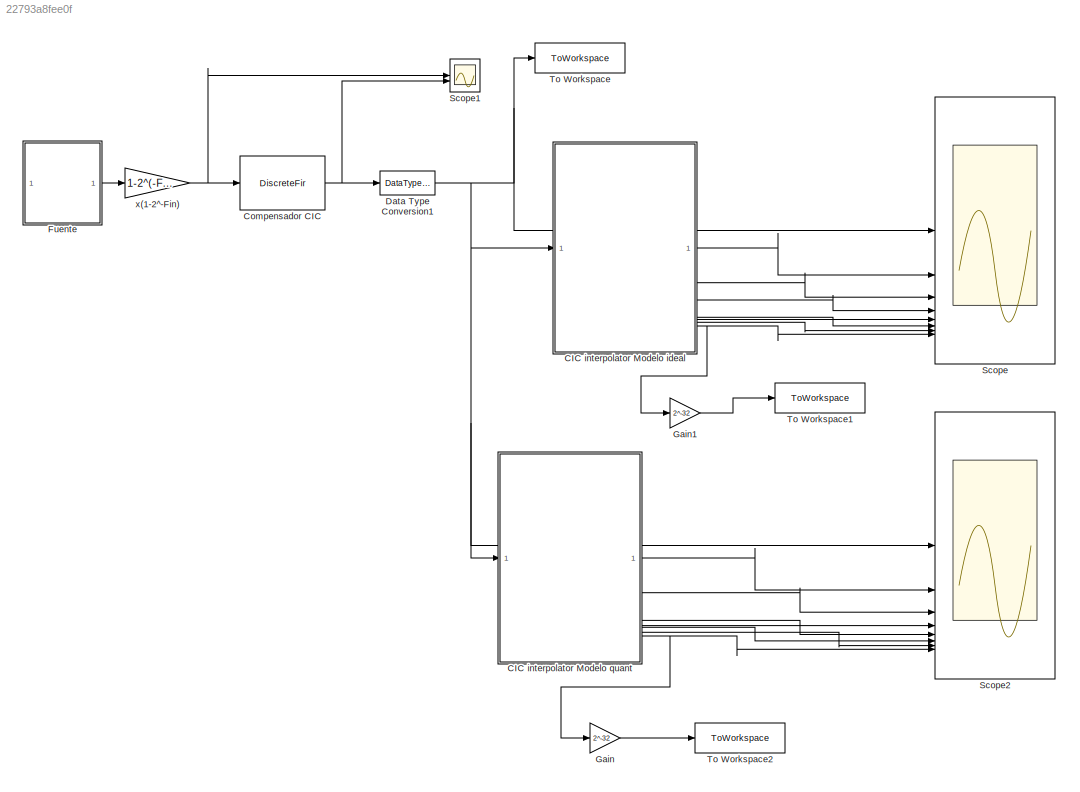
MODEL slx_22793a8fee0f
KIND model
CONFIG AbsTol = auto
CONFIG EnableMultiTasking = on
CONFIG FixedStep = auto
CONFIG MaxStep = auto
CONFIG MinStep = auto
CONFIG RelTol = 1e-3
CONFIG SampleTimeConstraint = Unconstrained
CONFIG SolverName = ode45
CONFIG StartTime = 0.0
CONFIG StopTime = Tsim
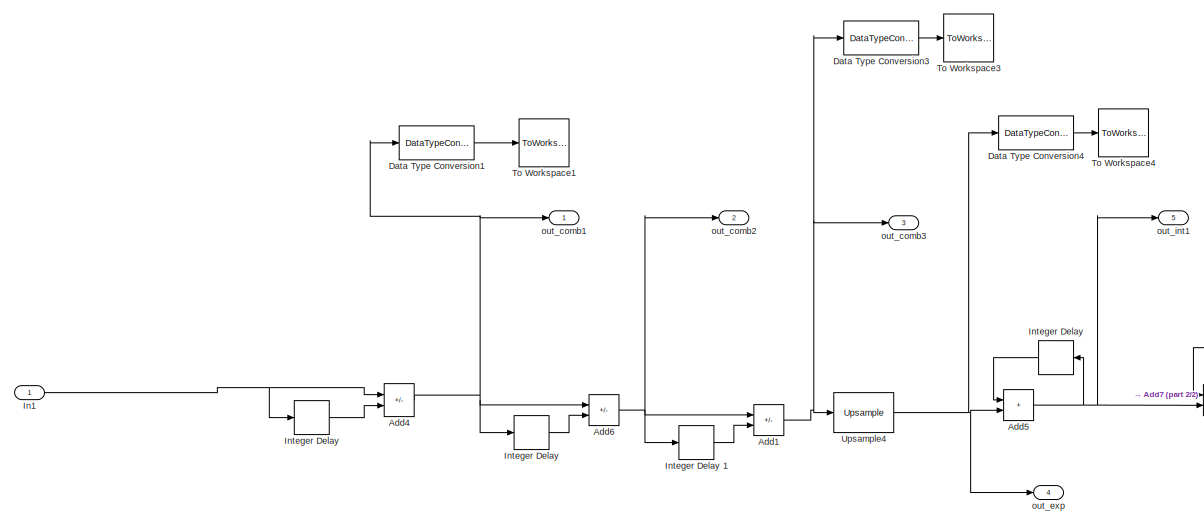
[diagram: CIC interpolator Modelo ideal  - part 1/2, center side, full height]
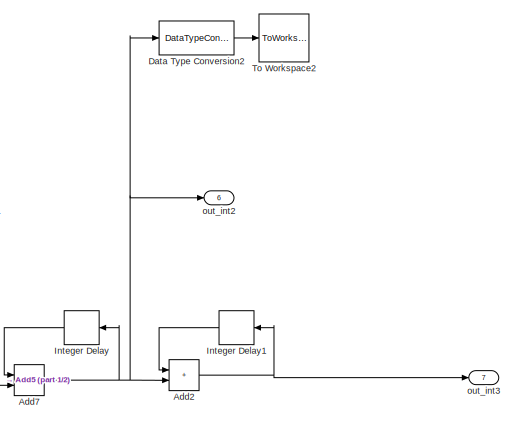
[diagram: CIC interpolator Modelo ideal  - part 2/2, right side, full height]
BLOCK [SubSystem] CIC interpolator Modelo ideal 
BLOCK [Delay] CIC interpolator Modelo ideal / Integer Delay
  DelayLength = 1
  InputPortMap = u0
  UserDataPersistent = on
BLOCK [Delay] CIC interpolator Modelo ideal / Integer Delay1
  DelayLength = 1
  InputPortMap = u0
  UserDataPersistent = on
BLOCK [Sum] CIC interpolator Modelo ideal /Add1
  IconShape = rectangular
  Inputs = +-
BLOCK [Sum] CIC interpolator Modelo ideal /Add2
  IconShape = rectangular
BLOCK [Sum] CIC interpolator Modelo ideal /Add4
  IconShape = rectangular
  Inputs = +-
BLOCK [Sum] CIC interpolator Modelo ideal /Add5
  IconShape = rectangular
BLOCK [Sum] CIC interpolator Modelo ideal /Add6
  IconShape = rectangular
  Inputs = +-
BLOCK [Sum] CIC interpolator Modelo ideal /Add7
  IconShape = rectangular
BLOCK [DataTypeConversion] CIC interpolator Modelo ideal /Data Type Conversion1
  RndMeth = Floor
  SaturateOnIntegerOverflow = off
BLOCK [DataTypeConversion] CIC interpolator Modelo ideal /Data Type Conversion2
  RndMeth = Floor
  SaturateOnIntegerOverflow = off
BLOCK [DataTypeConversion] CIC interpolator Modelo ideal /Data Type Conversion3
  RndMeth = Floor
  SaturateOnIntegerOverflow = off
BLOCK [DataTypeConversion] CIC interpolator Modelo ideal /Data Type Conversion4
  RndMeth = Floor
  SaturateOnIntegerOverflow = off
BLOCK [Inport] CIC interpolator Modelo ideal /In1
BLOCK [Delay] CIC interpolator Modelo ideal /Integer Delay 
  DelayLength = M
  InputPortMap = u0
  UserDataPersistent = on
BLOCK [Delay] CIC interpolator Modelo ideal /Integer Delay  
  DelayLength = M
  InputPortMap = u0
  UserDataPersistent = on
BLOCK [Delay] CIC interpolator Modelo ideal /Integer Delay  1
  DelayLength = M
  InputPortMap = u0
  UserDataPersistent = on
BLOCK [ToWorkspace] CIC interpolator Modelo ideal /To Workspace1
  MaxDataPoints = inf
  SampleTime = -1
  Save2DSignal = 2-D array (concatenate along first dimension)
  VariableName = sout_comb
BLOCK [ToWorkspace] CIC interpolator Modelo ideal /To Workspace2
  MaxDataPoints = inf
  SampleTime = -1
  Save2DSignal = 2-D array (concatenate along first dimension)
  VariableName = sin_int
BLOCK [ToWorkspace] CIC interpolator Modelo ideal /To Workspace3
  MaxDataPoints = inf
  SampleTime = -1
  Save2DSignal = 2-D array (concatenate along first dimension)
  VariableName = sin_exp
BLOCK [ToWorkspace] CIC interpolator Modelo ideal /To Workspace4
  MaxDataPoints = inf
  SampleTime = -1
  Save2DSignal = 2-D array (concatenate along first dimension)
  VariableName = sout_exp
BLOCK [Reference] CIC interpolator Modelo ideal /Upsample4  REF=dspsigops/Upsample
  SourceBlock = dspsigops/Upsample
  SourceType = Upsample
  UserDataPersistent = on
BLOCK [Outport] CIC interpolator Modelo ideal /out_comb1
  VectorParamsAs1DForOutWhenUnconnected = off
BLOCK [Outport] CIC interpolator Modelo ideal /out_comb2
  Port = 2
  VectorParamsAs1DForOutWhenUnconnected = off
BLOCK [Outport] CIC interpolator Modelo ideal /out_comb3
  Port = 3
  VectorParamsAs1DForOutWhenUnconnected = off
BLOCK [Outport] CIC interpolator Modelo ideal /out_exp
  Port = 4
  VectorParamsAs1DForOutWhenUnconnected = off
BLOCK [Outport] CIC interpolator Modelo ideal /out_int1
  Port = 5
  VectorParamsAs1DForOutWhenUnconnected = off
BLOCK [Outport] CIC interpolator Modelo ideal /out_int2
  Port = 6
  VectorParamsAs1DForOutWhenUnconnected = off
BLOCK [Outport] CIC interpolator Modelo ideal /out_int3
  Port = 7
  VectorParamsAs1DForOutWhenUnconnected = off
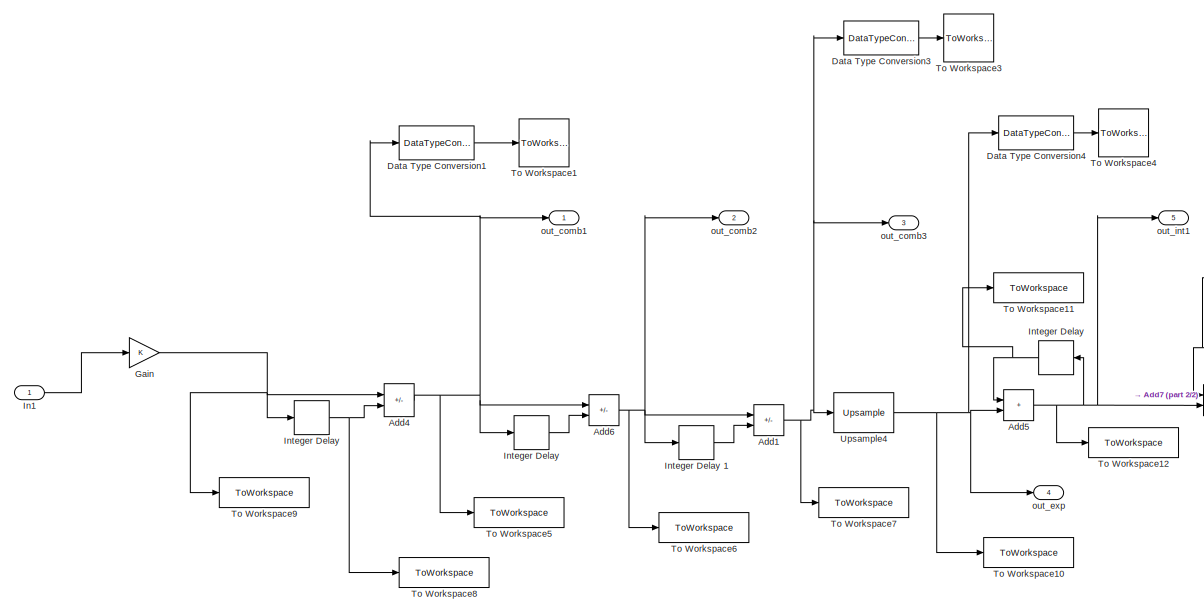
[diagram: CIC interpolator Modelo quant - part 1/2, center side, full height]
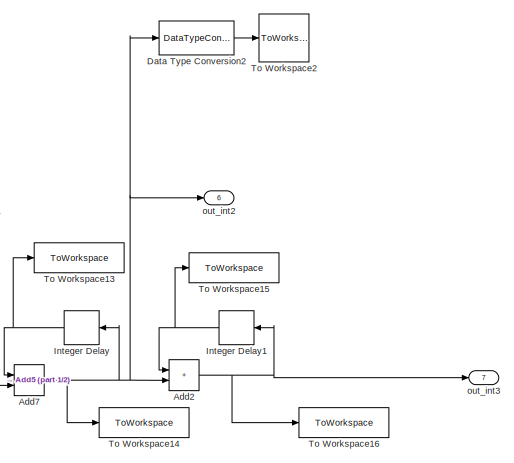
[diagram: CIC interpolator Modelo quant - part 2/2, middle right region]
BLOCK [SubSystem] CIC interpolator Modelo quant
BLOCK [Delay] CIC interpolator Modelo quant/ Integer Delay
  DelayLength = 1
  InputPortMap = u0
  UserDataPersistent = on
BLOCK [Delay] CIC interpolator Modelo quant/ Integer Delay1
  DelayLength = 1
  InputPortMap = u0
  UserDataPersistent = on
BLOCK [Sum] CIC interpolator Modelo quant/Add1
  IconShape = rectangular
  Inputs = +-
  OutDataTypeStr = fixdt(1,Wcomb,Fcomb)
BLOCK [Sum] CIC interpolator Modelo quant/Add2
  IconShape = rectangular
  OutDataTypeStr = fixdt(1,Wint,Fint)
BLOCK [Sum] CIC interpolator Modelo quant/Add4
  IconShape = rectangular
  Inputs = +-
  OutDataTypeStr = fixdt(1,Wcomb,Fcomb)
BLOCK [Sum] CIC interpolator Modelo quant/Add5
  IconShape = rectangular
  OutDataTypeStr = fixdt(1,Wint,Fint)
BLOCK [Sum] CIC interpolator Modelo quant/Add6
  IconShape = rectangular
  Inputs = +-
  OutDataTypeStr = fixdt(1,Wcomb,Fcomb)
BLOCK [Sum] CIC interpolator Modelo quant/Add7
  IconShape = rectangular
  OutDataTypeStr = fixdt(1,Wint,Fint)
BLOCK [DataTypeConversion] CIC interpolator Modelo quant/Data Type Conversion1
  RndMeth = Floor
  SaturateOnIntegerOverflow = off
BLOCK [DataTypeConversion] CIC interpolator Modelo quant/Data Type Conversion2
  RndMeth = Floor
  SaturateOnIntegerOverflow = off
BLOCK [DataTypeConversion] CIC interpolator Modelo quant/Data Type Conversion3
  RndMeth = Floor
  SaturateOnIntegerOverflow = off
BLOCK [DataTypeConversion] CIC interpolator Modelo quant/Data Type Conversion4
  RndMeth = Floor
  SaturateOnIntegerOverflow = off
BLOCK [Gain] CIC interpolator Modelo quant/Gain
  OutDataTypeStr = fixdt(1,21,15)
BLOCK [Inport] CIC interpolator Modelo quant/In1
BLOCK [Delay] CIC interpolator Modelo quant/Integer Delay 
  DelayLength = M
  InputPortMap = u0
  UserDataPersistent = on
BLOCK [Delay] CIC interpolator Modelo quant/Integer Delay  
  DelayLength = M
  InputPortMap = u0
  UserDataPersistent = on
BLOCK [Delay] CIC interpolator Modelo quant/Integer Delay  1
  DelayLength = M
  InputPortMap = u0
  UserDataPersistent = on
BLOCK [ToWorkspace] CIC interpolator Modelo quant/To Workspace1
  MaxDataPoints = inf
  SampleTime = -1
  Save2DSignal = 2-D array (concatenate along first dimension)
  VariableName = sout_comb_q
BLOCK [ToWorkspace] CIC interpolator Modelo quant/To Workspace10
  FixptAsFi = on
  MaxDataPoints = inf
  SampleTime = -1
  Save2DSignal = 2-D array (concatenate along first dimension)
  VariableName = int0_input
BLOCK [ToWorkspace] CIC interpolator Modelo quant/To Workspace11
  FixptAsFi = on
  MaxDataPoints = inf
  SampleTime = -1
  Save2DSignal = 2-D array (concatenate along first dimension)
  VariableName = int0_delay
BLOCK [ToWorkspace] CIC interpolator Modelo quant/To Workspace12
  FixptAsFi = on
  MaxDataPoints = inf
  SampleTime = -1
  Save2DSignal = 2-D array (concatenate along first dimension)
  VariableName = int0_out
BLOCK [ToWorkspace] CIC interpolator Modelo quant/To Workspace13
  FixptAsFi = on
  MaxDataPoints = inf
  SampleTime = -1
  Save2DSignal = 2-D array (concatenate along first dimension)
  VariableName = int1_delay
BLOCK [ToWorkspace] CIC interpolator Modelo quant/To Workspace14
  FixptAsFi = on
  MaxDataPoints = inf
  SampleTime = -1
  Save2DSignal = 2-D array (concatenate along first dimension)
  VariableName = int1_out
BLOCK [ToWorkspace] CIC interpolator Modelo quant/To Workspace15
  FixptAsFi = on
  MaxDataPoints = inf
  SampleTime = -1
  Save2DSignal = 2-D array (concatenate along first dimension)
  VariableName = int2_delay
BLOCK [ToWorkspace] CIC interpolator Modelo quant/To Workspace16
  FixptAsFi = on
  MaxDataPoints = inf
  SampleTime = -1
  Save2DSignal = 2-D array (concatenate along first dimension)
  VariableName = int2_out
BLOCK [ToWorkspace] CIC interpolator Modelo quant/To Workspace2
  MaxDataPoints = inf
  SampleTime = -1
  Save2DSignal = 2-D array (concatenate along first dimension)
  VariableName = sin_int_q
BLOCK [ToWorkspace] CIC interpolator Modelo quant/To Workspace3
  MaxDataPoints = inf
  SampleTime = -1
  Save2DSignal = 2-D array (concatenate along first dimension)
  VariableName = sin_exp_q
BLOCK [ToWorkspace] CIC interpolator Modelo quant/To Workspace4
  MaxDataPoints = inf
  SampleTime = -1
  Save2DSignal = 2-D array (concatenate along first dimension)
  VariableName = sout_exp_q
BLOCK [ToWorkspace] CIC interpolator Modelo quant/To Workspace5
  FixptAsFi = on
  MaxDataPoints = inf
  SampleTime = -1
  Save2DSignal = 2-D array (concatenate along first dimension)
  VariableName = comb0_out
BLOCK [ToWorkspace] CIC interpolator Modelo quant/To Workspace6
  FixptAsFi = on
  MaxDataPoints = inf
  SampleTime = -1
  Save2DSignal = 2-D array (concatenate along first dimension)
  VariableName = comb1_out
BLOCK [ToWorkspace] CIC interpolator Modelo quant/To Workspace7
  FixptAsFi = on
  MaxDataPoints = inf
  SampleTime = -1
  Save2DSignal = 2-D array (concatenate along first dimension)
  VariableName = comb2_out
BLOCK [ToWorkspace] CIC interpolator Modelo quant/To Workspace8
  FixptAsFi = on
  MaxDataPoints = inf
  SampleTime = -1
  Save2DSignal = 2-D array (concatenate along first dimension)
  VariableName = comb0_delay
BLOCK [ToWorkspace] CIC interpolator Modelo quant/To Workspace9
  FixptAsFi = on
  MaxDataPoints = inf
  SampleTime = -1
  Save2DSignal = 2-D array (concatenate along first dimension)
  VariableName = comb0_input
BLOCK [Reference] CIC interpolator Modelo quant/Upsample4  REF=dspsigops/Upsample
  SourceBlock = dspsigops/Upsample
  SourceType = Upsample
  UserDataPersistent = on
BLOCK [Outport] CIC interpolator Modelo quant/out_comb1
  VectorParamsAs1DForOutWhenUnconnected = off
BLOCK [Outport] CIC interpolator Modelo quant/out_comb2
  Port = 2
  VectorParamsAs1DForOutWhenUnconnected = off
BLOCK [Outport] CIC interpolator Modelo quant/out_comb3
  Port = 3
  VectorParamsAs1DForOutWhenUnconnected = off
BLOCK [Outport] CIC interpolator Modelo quant/out_exp
  Port = 4
  VectorParamsAs1DForOutWhenUnconnected = off
BLOCK [Outport] CIC interpolator Modelo quant/out_int1
  Port = 5
  VectorParamsAs1DForOutWhenUnconnected = off
BLOCK [Outport] CIC interpolator Modelo quant/out_int2
  Port = 6
  VectorParamsAs1DForOutWhenUnconnected = off
BLOCK [Outport] CIC interpolator Modelo quant/out_int3
  Port = 7
  VectorParamsAs1DForOutWhenUnconnected = off
BLOCK [DiscreteFir] Compensador CIC
  Coefficients = h_comp_cic
  InputPortMap = u0
  InputProcessing = Columns as channels (frame based)
  OutputPortMap = o0
BLOCK [DataTypeConversion] Data Type Conversion1
  OutDataTypeStr = double
  RndMeth = Floor
  SaturateOnIntegerOverflow = off
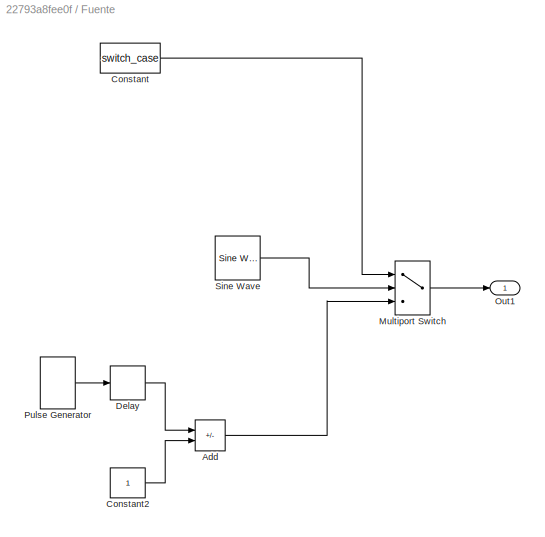
BLOCK [SubSystem] Fuente
BLOCK [Sum] Fuente/Add
  IconShape = rectangular
  Inputs = +-
BLOCK [Constant] Fuente/Constant
  Value = switch_case
BLOCK [Constant] Fuente/Constant2
BLOCK [Delay] Fuente/Delay
  DelayLength = 1
  InitialCondition = 0
  InputPortMap = u0
  SampleTime = 1/(fsL*1000)
BLOCK [MultiPortSwitch] Fuente/Multiport Switch
  InputSameDT = off
  Inputs = 2
  SaturateOnIntegerOverflow = off
BLOCK [Outport] Fuente/Out1
  VectorParamsAs1DForOutWhenUnconnected = off
BLOCK [DiscretePulseGenerator] Fuente/Pulse Generator
  Amplitude = 2
  Period = 1/(fo*1000)
  PulseType = Time based
  PulseWidth = 50
  SampleTime = 1/(fsL*1000)
BLOCK [Reference] Fuente/Sine Wave  REF=dspsrcs4/Sine Wave
  SourceBlock = dspsrcs4/Sine Wave
  SourceType = Sine Wave
BLOCK [Gain] Gain
  Gain = 2^-32
  OutDataTypeStr = double
BLOCK [Gain] Gain1
  Gain = 2^-32
  OutDataTypeStr = double
BLOCK [Scope] Scope
  Floating = off
  NumInputPorts = 8
  ScopeSpecificationString = Simulink.scopes.TimeScopeBlockCfg('CurrentConfiguration', extmgr.ConfigurationSet(extmgr.Configuration('Core','General UI',true),extmgr.Configuration('Core','Source UI',true),extmgr.Configuration('Sources','WiredSimulink',true),extmgr.Configuration('Visuals','Time Domain',true,'SerializedDisplays',{struct('MinYLimReal','-2.90789','MaxYLimReal','2.90791','YLabelReal','','MinYLimMag','0.00000','MaxY...<+6992ch>
BLOCK [Scope] Scope1
  Floating = off
  NumInputPorts = 2
  ScopeSpecificationString = Simulink.scopes.TimeScopeBlockCfg('CurrentConfiguration', extmgr.ConfigurationSet(extmgr.Configuration('Core','General UI',true),extmgr.Configuration('Core','Source UI',true),extmgr.Configuration('Sources','WiredSimulink',true,'DataLoggingVariableName','ScopeData1'),extmgr.Configuration('Visuals','Time Domain',true,'SerializedDisplays',{struct('MinYLimReal','-1.24996','MaxYLimReal','1.24996','YLab...<+1993ch>
BLOCK [Scope] Scope2
  Floating = off
  NumInputPorts = 8
  ScopeSpecificationString = Simulink.scopes.TimeScopeBlockCfg('CurrentConfiguration', extmgr.ConfigurationSet(extmgr.Configuration('Core','General UI',true),extmgr.Configuration('Core','Source UI',true),extmgr.Configuration('Sources','WiredSimulink',true,'DataLoggingVariableName','ScopeData1'),extmgr.Configuration('Visuals','Time Domain',true,'SerializedDisplays',{struct('MinYLimReal','-2.90789','MaxYLimReal','2.90791','YLab...<+6684ch>
BLOCK [ToWorkspace] To Workspace
  FixptAsFi = on
  MaxDataPoints = inf
  SampleTime = -1
  Save2DSignal = 2-D array (concatenate along first dimension)
  VariableName = s_in
BLOCK [ToWorkspace] To Workspace1
  FixptAsFi = on
  MaxDataPoints = inf
  SampleTime = -1
  Save2DSignal = 2-D array (concatenate along first dimension)
  VariableName = s_out
BLOCK [ToWorkspace] To Workspace2
  FixptAsFi = on
  MaxDataPoints = inf
  SampleTime = -1
  Save2DSignal = 2-D array (concatenate along first dimension)
  VariableName = s_out_quant
BLOCK [Gain] x(1-2^-Fin)
  Gain = 1-2^(-Fsig)
  OutDataTypeStr = fixdt(1,Wsig,Fsig)
LINE CIC interpolator Modelo ideal / Integer Delay1:1 -> CIC interpolator Modelo ideal /Add2:1
LINE CIC interpolator Modelo ideal / Integer Delay:1 -> CIC interpolator Modelo ideal /Add7:1
NET CIC interpolator Modelo ideal /Add1:1 -> CIC interpolator Modelo ideal /Data Type Conversion3:1, CIC interpolator Modelo ideal /Upsample4:1, CIC interpolator Modelo ideal /out_comb3:1
NET CIC interpolator Modelo ideal /Add2:1 -> CIC interpolator Modelo ideal / Integer Delay1:1, CIC interpolator Modelo ideal /out_int3:1
NET CIC interpolator Modelo ideal /Add4:1 -> CIC interpolator Modelo ideal /Add6:1, CIC interpolator Modelo ideal /Data Type Conversion1:1, CIC interpolator Modelo ideal /Integer Delay  :1, CIC interpolator Modelo ideal /out_comb1:1
NET CIC interpolator Modelo ideal /Add5:1 -> CIC interpolator Modelo ideal /Add7:2, CIC interpolator Modelo ideal /Integer Delay :1, CIC interpolator Modelo ideal /out_int1:1
NET CIC interpolator Modelo ideal /Add6:1 -> CIC interpolator Modelo ideal /Add1:1, CIC interpolator Modelo ideal /Integer Delay  1:1, CIC interpolator Modelo ideal /out_comb2:1
NET CIC interpolator Modelo ideal /Add7:1 -> CIC interpolator Modelo ideal / Integer Delay:1, CIC interpolator Modelo ideal /Add2:2, CIC interpolator Modelo ideal /Data Type Conversion2:1, CIC interpolator Modelo ideal /out_int2:1
LINE CIC interpolator Modelo ideal /Data Type Conversion1:1 -> CIC interpolator Modelo ideal /To Workspace1:1
LINE CIC interpolator Modelo ideal /Data Type Conversion2:1 -> CIC interpolator Modelo ideal /To Workspace2:1
LINE CIC interpolator Modelo ideal /Data Type Conversion3:1 -> CIC interpolator Modelo ideal /To Workspace3:1
LINE CIC interpolator Modelo ideal /Data Type Conversion4:1 -> CIC interpolator Modelo ideal /To Workspace4:1
NET CIC interpolator Modelo ideal /In1:1 -> CIC interpolator Modelo ideal /Add4:1, CIC interpolator Modelo ideal /Integer Delay :1
LINE CIC interpolator Modelo ideal /Integer Delay  1:1 -> CIC interpolator Modelo ideal /Add1:2
LINE CIC interpolator Modelo ideal /Integer Delay  :1 -> CIC interpolator Modelo ideal /Add6:2
NET CIC interpolator Modelo ideal /Integer Delay :1 -> CIC interpolator Modelo ideal /Add4:2, CIC interpolator Modelo ideal /Add5:1
NET CIC interpolator Modelo ideal /Upsample4:1 -> CIC interpolator Modelo ideal /Add5:2, CIC interpolator Modelo ideal /Data Type Conversion4:1, CIC interpolator Modelo ideal /out_exp:1
LINE CIC interpolator Modelo ideal :1 -> Scope:2
LINE CIC interpolator Modelo ideal :2 -> Scope:3
LINE CIC interpolator Modelo ideal :3 -> Scope:4
LINE CIC interpolator Modelo ideal :4 -> Scope:5
LINE CIC interpolator Modelo ideal :5 -> Scope:6
LINE CIC interpolator Modelo ideal :6 -> Scope:7
NET CIC interpolator Modelo ideal :7 -> Gain1:1, Scope:8
NET CIC interpolator Modelo quant/ Integer Delay1:1 -> CIC interpolator Modelo quant/Add2:1, CIC interpolator Modelo quant/To Workspace15:1
NET CIC interpolator Modelo quant/ Integer Delay:1 -> CIC interpolator Modelo quant/Add7:1, CIC interpolator Modelo quant/To Workspace13:1
NET CIC interpolator Modelo quant/Add1:1 -> CIC interpolator Modelo quant/Data Type Conversion3:1, CIC interpolator Modelo quant/To Workspace7:1, CIC interpolator Modelo quant/Upsample4:1, CIC interpolator Modelo quant/out_comb3:1
NET CIC interpolator Modelo quant/Add2:1 -> CIC interpolator Modelo quant/ Integer Delay1:1, CIC interpolator Modelo quant/To Workspace16:1, CIC interpolator Modelo quant/out_int3:1
NET CIC interpolator Modelo quant/Add4:1 -> CIC interpolator Modelo quant/Add6:1, CIC interpolator Modelo quant/Data Type Conversion1:1, CIC interpolator Modelo quant/Integer Delay  :1, CIC interpolator Modelo quant/To Workspace5:1, CIC interpolator Modelo quant/out_comb1:1
NET CIC interpolator Modelo quant/Add5:1 -> CIC interpolator Modelo quant/Add7:2, CIC interpolator Modelo quant/Integer Delay :1, CIC interpolator Modelo quant/To Workspace12:1, CIC interpolator Modelo quant/out_int1:1
NET CIC interpolator Modelo quant/Add6:1 -> CIC interpolator Modelo quant/Add1:1, CIC interpolator Modelo quant/Integer Delay  1:1, CIC interpolator Modelo quant/To Workspace6:1, CIC interpolator Modelo quant/out_comb2:1
NET CIC interpolator Modelo quant/Add7:1 -> CIC interpolator Modelo quant/ Integer Delay:1, CIC interpolator Modelo quant/Add2:2, CIC interpolator Modelo quant/Data Type Conversion2:1, CIC interpolator Modelo quant/To Workspace14:1, CIC interpolator Modelo quant/out_int2:1
LINE CIC interpolator Modelo quant/Data Type Conversion1:1 -> CIC interpolator Modelo quant/To Workspace1:1
LINE CIC interpolator Modelo quant/Data Type Conversion2:1 -> CIC interpolator Modelo quant/To Workspace2:1
LINE CIC interpolator Modelo quant/Data Type Conversion3:1 -> CIC interpolator Modelo quant/To Workspace3:1
LINE CIC interpolator Modelo quant/Data Type Conversion4:1 -> CIC interpolator Modelo quant/To Workspace4:1
NET CIC interpolator Modelo quant/Gain:1 -> CIC interpolator Modelo quant/Add4:1, CIC interpolator Modelo quant/Integer Delay :1, CIC interpolator Modelo quant/To Workspace9:1
LINE CIC interpolator Modelo quant/In1:1 -> CIC interpolator Modelo quant/Gain:1
LINE CIC interpolator Modelo quant/Integer Delay  1:1 -> CIC interpolator Modelo quant/Add1:2
LINE CIC interpolator Modelo quant/Integer Delay  :1 -> CIC interpolator Modelo quant/Add6:2
NET CIC interpolator Modelo quant/Integer Delay :1 -> CIC interpolator Modelo quant/Add4:2, CIC interpolator Modelo quant/Add5:1, CIC interpolator Modelo quant/To Workspace11:1, CIC interpolator Modelo quant/To Workspace8:1
NET CIC interpolator Modelo quant/Upsample4:1 -> CIC interpolator Modelo quant/Add5:2, CIC interpolator Modelo quant/Data Type Conversion4:1, CIC interpolator Modelo quant/To Workspace10:1, CIC interpolator Modelo quant/out_exp:1
LINE CIC interpolator Modelo quant:1 -> Scope2:2
LINE CIC interpolator Modelo quant:2 -> Scope2:3
LINE CIC interpolator Modelo quant:3 -> Scope2:4
LINE CIC interpolator Modelo quant:4 -> Scope2:5
LINE CIC interpolator Modelo quant:5 -> Scope2:6
LINE CIC interpolator Modelo quant:6 -> Scope2:7
NET CIC interpolator Modelo quant:7 -> Gain:1, Scope2:8
NET Compensador CIC:1 -> Data Type Conversion1:1, Scope1:2
NET Data Type Conversion1:1 -> CIC interpolator Modelo ideal :1, CIC interpolator Modelo quant:1, Scope2:1, Scope:1, To Workspace:1
LINE Fuente/Add:1 -> Fuente/Multiport Switch:3
LINE Fuente/Constant2:1 -> Fuente/Add:2
LINE Fuente/Constant:1 -> Fuente/Multiport Switch:1
LINE Fuente/Delay:1 -> Fuente/Add:1
LINE Fuente/Multiport Switch:1 -> Fuente/Out1:1
LINE Fuente/Pulse Generator:1 -> Fuente/Delay:1
LINE Fuente/Sine Wave:1 -> Fuente/Multiport Switch:2
LINE Fuente:1 -> x(1-2^-Fin):1
LINE Gain1:1 -> To Workspace1:1
LINE Gain:1 -> To Workspace2:1
NET x(1-2^-Fin):1 -> Compensador CIC:1, Scope1:1
note: NET lines group one-source signal fan-out (src -> all destinations, sorted); 1:1 wires keep LINE
